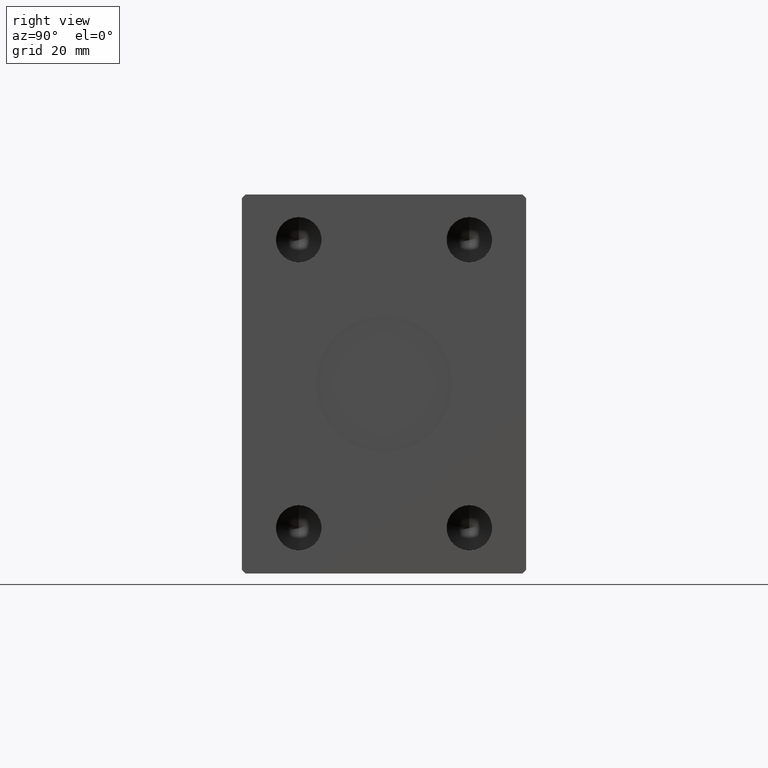
[diagram: clean part render]
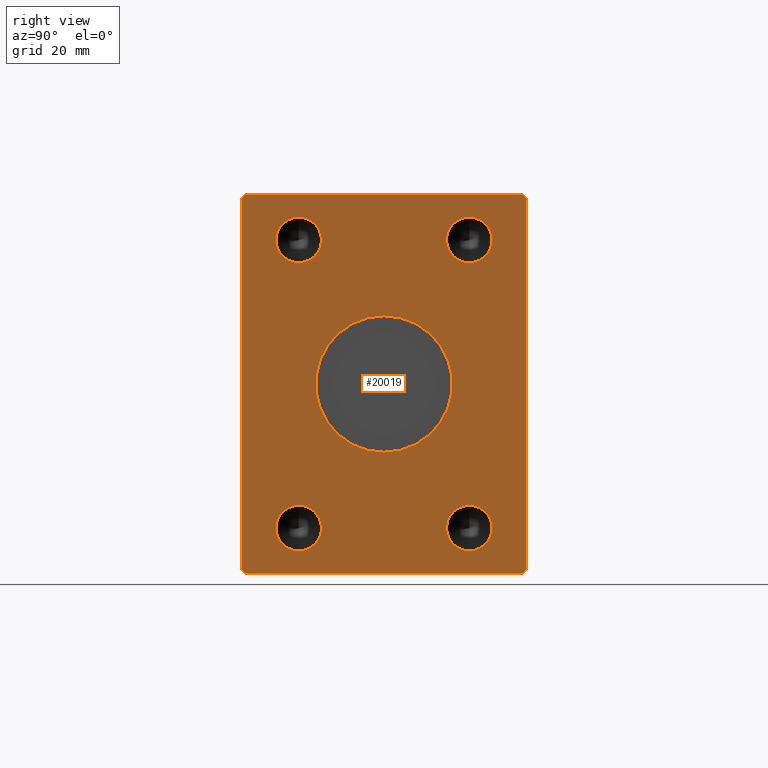
[diagram: same view with one face highlighted and labeled with its STEP entity id]
A machine part, right view. The second image highlights one B-rep face of the part: STEP entity #20019.
In plain terms, the highlighted planar face has unit normal (1, 0, 0).
Its self-contained STEP definition (entity closure, byte-faithful):
#335 = CARTESIAN_POINT ( 'NONE',  ( 107.0000000000000000, 22.50000000000000000, -44.00000000000000000 ) ) ;
#1079 = FACE_BOUND ( 'NONE', #34083, .T. ) ;
#1187 = CARTESIAN_POINT ( 'NONE',  ( 107.0000000000000000, -22.50000000000000000, -38.00000000000000711 ) ) ;
#1416 = VERTEX_POINT ( 'NONE', #13131 ) ;
#1627 = AXIS2_PLACEMENT_3D ( 'NONE', #36998, #3485, #20377 ) ;
#2054 = CARTESIAN_POINT ( 'NONE',  ( 107.0000000000000000, -22.50000000000000000, 32.00000000000000000 ) ) ;
#2121 = VERTEX_POINT ( 'NONE', #31914 ) ;
#2137 = VERTEX_POINT ( 'NONE', #31683 ) ;
#2176 = ORIENTED_EDGE ( 'NONE', *, *, #40252, .T. ) ;
#2643 = CIRCLE ( 'NONE', #15617, 5.999999999999998224 ) ;
#3034 = VECTOR ( 'NONE', #15883, 1000.000000000000000 ) ;
#3061 = AXIS2_PLACEMENT_3D ( 'NONE', #32326, #31887, #4664 ) ;
#3079 = CARTESIAN_POINT ( 'NONE',  ( 107.0000000000000000, -37.50000000000001421, -49.00000000000000000 ) ) ;
#3485 = DIRECTION ( 'NONE',  ( 1.000000000000000000, -0.000000000000000000, -0.000000000000000000 ) ) ;
#3961 = CARTESIAN_POINT ( 'NONE',  ( 107.0000000000000000, 2.204364238465235428E-15, 18.00000000000000000 ) ) ;
#4095 = EDGE_CURVE ( 'NONE', #14913, #2137, #43385, .T. ) ;
#4232 = EDGE_LOOP ( 'NONE', ( #33773, #39058, #41158, #43560, #22265, #43325, #21504, #2176 ) ) ;
#4311 = LINE ( 'NONE', #10634, #16135 ) ;
#4601 = EDGE_CURVE ( 'NONE', #25826, #32949, #23325, .T. ) ;
#4664 = DIRECTION ( 'NONE',  ( 0.000000000000000000, 0.000000000000000000, -1.000000000000000000 ) ) ;
#4708 = VECTOR ( 'NONE', #38109, 1000.000000000000000 ) ;
#5543 = DIRECTION ( 'NONE',  ( 1.000000000000000000, -0.000000000000000000, -0.000000000000000000 ) ) ;
#5595 = DIRECTION ( 'NONE',  ( 0.000000000000000000, 0.7071067811865474617, 0.7071067811865474617 ) ) ;
#5637 = VERTEX_POINT ( 'NONE', #2054 ) ;
#6397 = LINE ( 'NONE', #20121, #28260 ) ;
#6498 = CARTESIAN_POINT ( 'NONE',  ( 107.0000000000000000, 22.50000000000000000, 38.00000000000000000 ) ) ;
#7872 = CARTESIAN_POINT ( 'NONE',  ( 107.0000000000000000, 22.50000000000000000, 32.00000000000000000 ) ) ;
#8082 = ORIENTED_EDGE ( 'NONE', *, *, #43009, .F. ) ;
#8141 = CARTESIAN_POINT ( 'NONE',  ( 107.0000000000000000, -36.50000000000001421, 49.99999999999998579 ) ) ;
#8927 = LINE ( 'NONE', #12975, #44146 ) ;
#9172 = VERTEX_POINT ( 'NONE', #19489 ) ;
#9391 = ORIENTED_EDGE ( 'NONE', *, *, #14475, .F. ) ;
#9411 = CARTESIAN_POINT ( 'NONE',  ( 107.0000000000000000, 36.50000000000000711, -50.00000000000000000 ) ) ;
#9797 = LINE ( 'NONE', #12954, #3034 ) ;
#10634 = CARTESIAN_POINT ( 'NONE',  ( 107.0000000000000000, -37.50000000000001421, 48.99999999999998579 ) ) ;
#11015 = AXIS2_PLACEMENT_3D ( 'NONE', #19240, #36067, #23053 ) ;
#11487 = VERTEX_POINT ( 'NONE', #3079 ) ;
#11736 = CIRCLE ( 'NONE', #17486, 5.999999999999998224 ) ;
#12549 = CARTESIAN_POINT ( 'NONE',  ( 107.0000000000000000, -22.50000000000000000, 38.00000000000000000 ) ) ;
#12954 = CARTESIAN_POINT ( 'NONE',  ( 107.0000000000000000, 37.50000000000000711, -49.00000000000000000 ) ) ;
#12975 = CARTESIAN_POINT ( 'NONE',  ( 107.0000000000000000, 36.50000000000000711, 50.00000000000000000 ) ) ;
#13131 = CARTESIAN_POINT ( 'NONE',  ( 107.0000000000000000, 22.50000000000000000, 44.00000000000000000 ) ) ;
#13209 = DIRECTION ( 'NONE',  ( 0.000000000000000000, 0.000000000000000000, -1.000000000000000000 ) ) ;
#13238 = AXIS2_PLACEMENT_3D ( 'NONE', #19345, #15966, #26306 ) ;
#13481 = EDGE_CURVE ( 'NONE', #25885, #5637, #14546, .T. ) ;
#13539 = EDGE_LOOP ( 'NONE', ( #17365, #17774 ) ) ;
#14133 = DIRECTION ( 'NONE',  ( 0.000000000000000000, 0.000000000000000000, -1.000000000000000000 ) ) ;
#14475 = EDGE_CURVE ( 'NONE', #32949, #25826, #15289, .T. ) ;
#14546 = CIRCLE ( 'NONE', #40393, 5.999999999999998224 ) ;
#14913 = VERTEX_POINT ( 'NONE', #22987 ) ;
#15224 = CARTESIAN_POINT ( 'NONE',  ( 107.0000000000000000, -22.50000000000000000, 38.00000000000000000 ) ) ;
#15289 = CIRCLE ( 'NONE', #1627, 5.999999999999998224 ) ;
#15320 = EDGE_CURVE ( 'NONE', #40731, #9172, #19674, .T. ) ;
#15467 = AXIS2_PLACEMENT_3D ( 'NONE', #12549, #16363, #26035 ) ;
#15617 = AXIS2_PLACEMENT_3D ( 'NONE', #23561, #41038, #13209 ) ;
#15753 = EDGE_LOOP ( 'NONE', ( #8082, #42369 ) ) ;
#15883 = DIRECTION ( 'NONE',  ( 0.000000000000000000, 0.000000000000000000, 1.000000000000000000 ) ) ;
#15966 = DIRECTION ( 'NONE',  ( 1.000000000000000000, 0.000000000000000000, 0.000000000000000000 ) ) ;
#16127 = CARTESIAN_POINT ( 'NONE',  ( 107.0000000000000000, -36.50000000000001421, 49.99999999999998579 ) ) ;
#16135 = VECTOR ( 'NONE', #27487, 1000.000000000000000 ) ;
#16363 = DIRECTION ( 'NONE',  ( 1.000000000000000000, -0.000000000000000000, -0.000000000000000000 ) ) ;
#17251 = ORIENTED_EDGE ( 'NONE', *, *, #4601, .F. ) ;
#17365 = ORIENTED_EDGE ( 'NONE', *, *, #41938, .F. ) ;
#17486 = AXIS2_PLACEMENT_3D ( 'NONE', #1187, #18294, #28839 ) ;
#17742 = EDGE_CURVE ( 'NONE', #44274, #11487, #4311, .T. ) ;
#17774 = ORIENTED_EDGE ( 'NONE', *, *, #31618, .F. ) ;
#18116 = LINE ( 'NONE', #42150, #44321 ) ;
#18178 = FACE_OUTER_BOUND ( 'NONE', #4232, .T. ) ;
#18294 = DIRECTION ( 'NONE',  ( 1.000000000000000000, -0.000000000000000000, -0.000000000000000000 ) ) ;
#18301 = CARTESIAN_POINT ( 'NONE',  ( 107.0000000000000000, 37.50000000000000711, -49.00000000000000000 ) ) ;
#18361 = ORIENTED_EDGE ( 'NONE', *, *, #4095, .F. ) ;
#18618 = EDGE_CURVE ( 'NONE', #19918, #30229, #8927, .T. ) ;
#18654 = ORIENTED_EDGE ( 'NONE', *, *, #26371, .F. ) ;
#19187 = EDGE_LOOP ( 'NONE', ( #9391, #17251 ) ) ;
#19240 = CARTESIAN_POINT ( 'NONE',  ( 107.0000000000000000, 0.000000000000000000, 0.000000000000000000 ) ) ;
#19345 = CARTESIAN_POINT ( 'NONE',  ( 107.0000000000000000, 0.000000000000000000, 0.000000000000000000 ) ) ;
#19489 = CARTESIAN_POINT ( 'NONE',  ( 107.0000000000000000, 0.000000000000000000, -18.00000000000000000 ) ) ;
#19500 = DIRECTION ( 'NONE',  ( 0.000000000000000000, 0.000000000000000000, -1.000000000000000000 ) ) ;
#19674 = CIRCLE ( 'NONE', #11015, 18.00000000000000000 ) ;
#19723 = AXIS2_PLACEMENT_3D ( 'NONE', #39688, #5543, #29375 ) ;
#19728 = LINE ( 'NONE', #16127, #37087 ) ;
#19918 = VERTEX_POINT ( 'NONE', #24716 ) ;
#20019 = ADVANCED_FACE ( 'NONE', ( #21549, #32777, #1079, #22223, #35240, #18178 ), #25821, .T. ) ;
#20121 = CARTESIAN_POINT ( 'NONE',  ( 107.0000000000000000, 37.50000000000000711, 49.00000000000000000 ) ) ;
#20377 = DIRECTION ( 'NONE',  ( 0.000000000000000000, 0.000000000000000000, -1.000000000000000000 ) ) ;
#20608 = VERTEX_POINT ( 'NONE', #18301 ) ;
#21504 = ORIENTED_EDGE ( 'NONE', *, *, #35499, .T. ) ;
#21549 = FACE_BOUND ( 'NONE', #40003, .T. ) ;
#21752 = CIRCLE ( 'NONE', #13238, 18.00000000000000000 ) ;
#21824 = CARTESIAN_POINT ( 'NONE',  ( 107.0000000000000000, 22.50000000000000000, -32.00000000000000000 ) ) ;
#22223 = FACE_BOUND ( 'NONE', #19187, .T. ) ;
#22265 = ORIENTED_EDGE ( 'NONE', *, *, #31801, .T. ) ;
#22646 = DIRECTION ( 'NONE',  ( 1.000000000000000000, -0.000000000000000000, -0.000000000000000000 ) ) ;
#22987 = CARTESIAN_POINT ( 'NONE',  ( 107.0000000000000000, -22.50000000000000000, -44.00000000000000711 ) ) ;
#23053 = DIRECTION ( 'NONE',  ( 0.000000000000000000, 0.000000000000000000, -1.000000000000000000 ) ) ;
#23325 = CIRCLE ( 'NONE', #26202, 5.999999999999998224 ) ;
#23561 = CARTESIAN_POINT ( 'NONE',  ( 107.0000000000000000, 22.50000000000000000, 38.00000000000000000 ) ) ;
#23663 = EDGE_CURVE ( 'NONE', #9172, #40731, #21752, .T. ) ;
#24716 = CARTESIAN_POINT ( 'NONE',  ( 107.0000000000000000, 36.50000000000000711, 50.00000000000000000 ) ) ;
#24799 = CARTESIAN_POINT ( 'NONE',  ( 107.0000000000000000, 22.50000000000000000, -38.00000000000000000 ) ) ;
#25398 = EDGE_CURVE ( 'NONE', #2121, #19918, #6397, .T. ) ;
#25821 = PLANE ( 'NONE',  #3061 ) ;
#25826 = VERTEX_POINT ( 'NONE', #21824 ) ;
#25885 = VERTEX_POINT ( 'NONE', #26320 ) ;
#25911 = VECTOR ( 'NONE', #5595, 1000.000000000000114 ) ;
#26035 = DIRECTION ( 'NONE',  ( 0.000000000000000000, 0.000000000000000000, -1.000000000000000000 ) ) ;
#26202 = AXIS2_PLACEMENT_3D ( 'NONE', #24799, #38247, #38469 ) ;
#26306 = DIRECTION ( 'NONE',  ( 0.000000000000000000, 0.000000000000000000, -1.000000000000000000 ) ) ;
#26320 = CARTESIAN_POINT ( 'NONE',  ( 107.0000000000000000, -22.50000000000000000, 44.00000000000000000 ) ) ;
#26371 = EDGE_CURVE ( 'NONE', #2137, #14913, #11736, .T. ) ;
#26980 = LINE ( 'NONE', #36855, #4708 ) ;
#27487 = DIRECTION ( 'NONE',  ( 0.000000000000000000, 0.000000000000000000, -1.000000000000000000 ) ) ;
#27876 = EDGE_CURVE ( 'NONE', #30229, #44274, #19728, .T. ) ;
#28176 = ORIENTED_EDGE ( 'NONE', *, *, #23663, .F. ) ;
#28260 = VECTOR ( 'NONE', #33819, 1000.000000000000114 ) ;
#28839 = DIRECTION ( 'NONE',  ( 0.000000000000000000, 0.000000000000000000, -1.000000000000000000 ) ) ;
#29375 = DIRECTION ( 'NONE',  ( 0.000000000000000000, 0.000000000000000000, -1.000000000000000000 ) ) ;
#29671 = VERTEX_POINT ( 'NONE', #32833 ) ;
#30229 = VERTEX_POINT ( 'NONE', #8141 ) ;
#30475 = VERTEX_POINT ( 'NONE', #7872 ) ;
#30892 = CARTESIAN_POINT ( 'NONE',  ( 107.0000000000000000, 36.50000000000000711, -50.00000000000000000 ) ) ;
#30898 = AXIS2_PLACEMENT_3D ( 'NONE', #6498, #44485, #14133 ) ;
#31379 = DIRECTION ( 'NONE',  ( 0.000000000000000000, 0.7071067811865500152, -0.7071067811865451302 ) ) ;
#31602 = CIRCLE ( 'NONE', #30898, 5.999999999999998224 ) ;
#31618 = EDGE_CURVE ( 'NONE', #1416, #30475, #2643, .T. ) ;
#31683 = CARTESIAN_POINT ( 'NONE',  ( 107.0000000000000000, -22.50000000000000000, -32.00000000000000711 ) ) ;
#31801 = EDGE_CURVE ( 'NONE', #11487, #29671, #18116, .T. ) ;
#31887 = DIRECTION ( 'NONE',  ( 1.000000000000000000, 0.000000000000000000, 0.000000000000000000 ) ) ;
#31914 = CARTESIAN_POINT ( 'NONE',  ( 107.0000000000000000, 37.50000000000000711, 49.00000000000000000 ) ) ;
#32326 = CARTESIAN_POINT ( 'NONE',  ( 107.0000000000000000, 0.000000000000000000, 0.000000000000000000 ) ) ;
#32777 = FACE_BOUND ( 'NONE', #13539, .T. ) ;
#32793 = ORIENTED_EDGE ( 'NONE', *, *, #15320, .F. ) ;
#32833 = CARTESIAN_POINT ( 'NONE',  ( 107.0000000000000000, -36.50000000000000711, -50.00000000000000000 ) ) ;
#32949 = VERTEX_POINT ( 'NONE', #335 ) ;
#33773 = ORIENTED_EDGE ( 'NONE', *, *, #25398, .T. ) ;
#33819 = DIRECTION ( 'NONE',  ( 0.000000000000000000, -0.7071067811865474617, 0.7071067811865474617 ) ) ;
#34083 = EDGE_LOOP ( 'NONE', ( #18361, #18654 ) ) ;
#35240 = FACE_BOUND ( 'NONE', #15753, .T. ) ;
#35499 = EDGE_CURVE ( 'NONE', #43386, #20608, #43576, .T. ) ;
#36067 = DIRECTION ( 'NONE',  ( 1.000000000000000000, 0.000000000000000000, 0.000000000000000000 ) ) ;
#36273 = CIRCLE ( 'NONE', #15467, 5.999999999999998224 ) ;
#36855 = CARTESIAN_POINT ( 'NONE',  ( 107.0000000000000000, -36.50000000000000711, -50.00000000000000000 ) ) ;
#36972 = CARTESIAN_POINT ( 'NONE',  ( 107.0000000000000000, -37.50000000000001421, 48.99999999999998579 ) ) ;
#36998 = CARTESIAN_POINT ( 'NONE',  ( 107.0000000000000000, 22.50000000000000000, -38.00000000000000000 ) ) ;
#37004 = DIRECTION ( 'NONE',  ( 0.000000000000000000, -1.000000000000000000, -1.901066822988281457E-16 ) ) ;
#37087 = VECTOR ( 'NONE', #40365, 1000.000000000000114 ) ;
#38109 = DIRECTION ( 'NONE',  ( 0.000000000000000000, 1.000000000000000000, 0.000000000000000000 ) ) ;
#38247 = DIRECTION ( 'NONE',  ( 1.000000000000000000, -0.000000000000000000, -0.000000000000000000 ) ) ;
#38469 = DIRECTION ( 'NONE',  ( 0.000000000000000000, 0.000000000000000000, -1.000000000000000000 ) ) ;
#39058 = ORIENTED_EDGE ( 'NONE', *, *, #18618, .T. ) ;
#39688 = CARTESIAN_POINT ( 'NONE',  ( 107.0000000000000000, -22.50000000000000000, -38.00000000000000711 ) ) ;
#40003 = EDGE_LOOP ( 'NONE', ( #28176, #32793 ) ) ;
#40252 = EDGE_CURVE ( 'NONE', #20608, #2121, #9797, .T. ) ;
#40365 = DIRECTION ( 'NONE',  ( 0.000000000000000000, -0.7071067811865474617, -0.7071067811865474617 ) ) ;
#40393 = AXIS2_PLACEMENT_3D ( 'NONE', #15224, #22646, #19500 ) ;
#40731 = VERTEX_POINT ( 'NONE', #3961 ) ;
#41038 = DIRECTION ( 'NONE',  ( 1.000000000000000000, -0.000000000000000000, -0.000000000000000000 ) ) ;
#41158 = ORIENTED_EDGE ( 'NONE', *, *, #27876, .T. ) ;
#41938 = EDGE_CURVE ( 'NONE', #30475, #1416, #31602, .T. ) ;
#42150 = CARTESIAN_POINT ( 'NONE',  ( 107.0000000000000000, -37.50000000000001421, -49.00000000000000000 ) ) ;
#42369 = ORIENTED_EDGE ( 'NONE', *, *, #13481, .F. ) ;
#43009 = EDGE_CURVE ( 'NONE', #5637, #25885, #36273, .T. ) ;
#43325 = ORIENTED_EDGE ( 'NONE', *, *, #44062, .T. ) ;
#43385 = CIRCLE ( 'NONE', #19723, 5.999999999999998224 ) ;
#43386 = VERTEX_POINT ( 'NONE', #30892 ) ;
#43560 = ORIENTED_EDGE ( 'NONE', *, *, #17742, .T. ) ;
#43576 = LINE ( 'NONE', #9411, #25911 ) ;
#44062 = EDGE_CURVE ( 'NONE', #29671, #43386, #26980, .T. ) ;
#44146 = VECTOR ( 'NONE', #37004, 1000.000000000000000 ) ;
#44274 = VERTEX_POINT ( 'NONE', #36972 ) ;
#44321 = VECTOR ( 'NONE', #31379, 1000.000000000000114 ) ;
#44485 = DIRECTION ( 'NONE',  ( 1.000000000000000000, -0.000000000000000000, -0.000000000000000000 ) ) ;